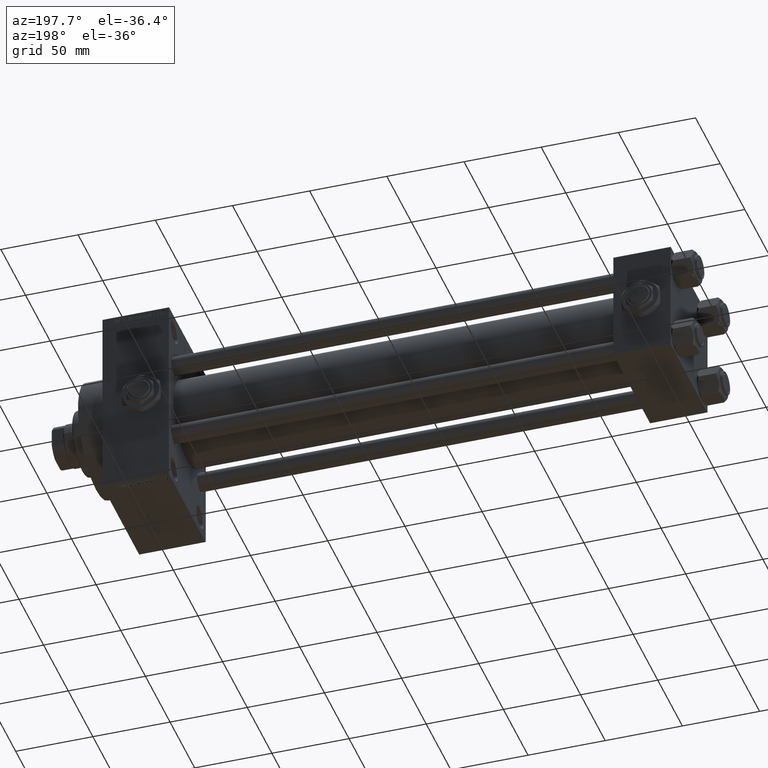
[diagram: clean part render]
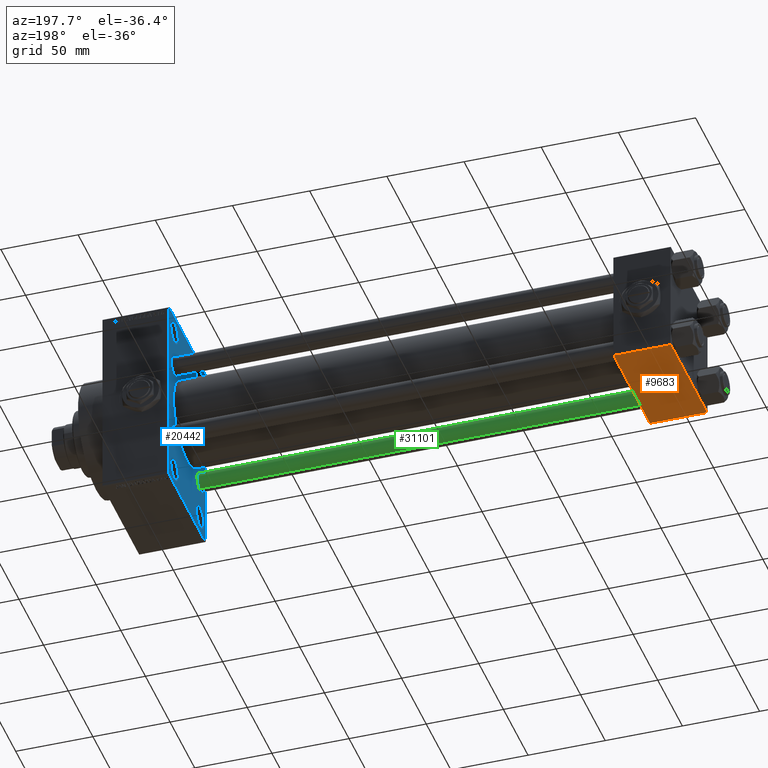
[diagram: same view with three faces highlighted in distinct colors, each labeled with its STEP entity id]
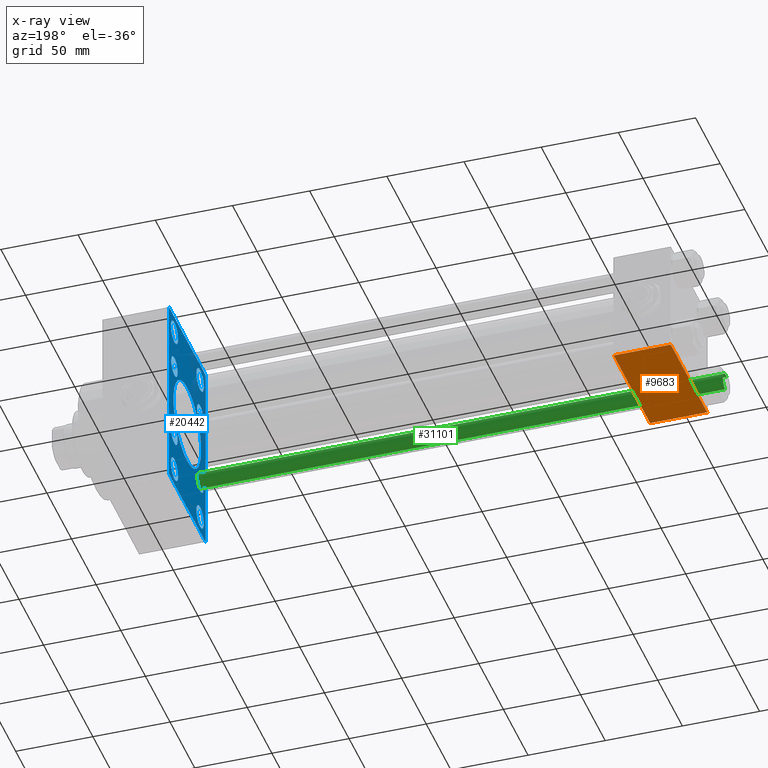
[diagram: x-ray of the same camera — body ghosted, the three highlighted faces saturated]
A machine part, auxiliary view with three faces highlighted in distinct colors.
The next image is the same camera in x-ray (body ghosted, the three faces saturated) — at least one of them is partly hidden behind the body in this view.
Their STEP definitions:

[orange] entity #9683 — the highlighted planar face has unit normal (0, 0, -1).
#314 = DIRECTION ( 'NONE',  ( 0.000000000000000000, -1.000000000000000000, -9.251858538542972814E-17 ) ) ;
#1746 = CARTESIAN_POINT ( 'NONE',  ( 37.00000000000000000, 36.99999999999997868, -37.50000000000000000 ) ) ;
#2787 = DIRECTION ( 'NONE',  ( -1.000000000000000000, 0.000000000000000000, 0.000000000000000000 ) ) ;
#4926 = DIRECTION ( 'NONE',  ( 0.000000000000000000, 9.251858538542972814E-17, -1.000000000000000000 ) ) ;
#5555 = VECTOR ( 'NONE', #2787, 1000.000000000000000 ) ;
#6349 = CARTESIAN_POINT ( 'NONE',  ( 0.000000000000000000, 36.99999999999997868, -37.50000000000000000 ) ) ;
#6779 = EDGE_LOOP ( 'NONE', ( #48385, #13533, #28303, #29151 ) ) ;
#7963 = LINE ( 'NONE', #33613, #12504 ) ;
#8301 = LINE ( 'NONE', #8550, #41348 ) ;
#8550 = CARTESIAN_POINT ( 'NONE',  ( 0.000000000000000000, 37.49999999999999289, -37.50000000000000000 ) ) ;
#8680 = FACE_OUTER_BOUND ( 'NONE', #6779, .T. ) ;
#9076 = AXIS2_PLACEMENT_3D ( 'NONE', #39038, #4926, #20113 ) ;
#9256 = VERTEX_POINT ( 'NONE', #1746 ) ;
#9683 = ADVANCED_FACE ( 'NONE', ( #8680 ), #23849, .T. ) ;
#12504 = VECTOR ( 'NONE', #30125, 1000.000000000000000 ) ;
#13533 = ORIENTED_EDGE ( 'NONE', *, *, #40612, .T. ) ;
#15201 = LINE ( 'NONE', #30378, #5555 ) ;
#16849 = EDGE_CURVE ( 'NONE', #9256, #35502, #7963, .T. ) ;
#20113 = DIRECTION ( 'NONE',  ( 0.000000000000000000, 1.000000000000000000, 9.251858538542972814E-17 ) ) ;
#23849 = PLANE ( 'NONE',  #9076 ) ;
#28303 = ORIENTED_EDGE ( 'NONE', *, *, #16849, .T. ) ;
#29151 = ORIENTED_EDGE ( 'NONE', *, *, #47722, .T. ) ;
#30125 = DIRECTION ( 'NONE',  ( 0.000000000000000000, -1.000000000000000000, -9.251858538542972814E-17 ) ) ;
#30378 = CARTESIAN_POINT ( 'NONE',  ( 0.000000000000000000, -37.00000000000002132, -37.50000000000000711 ) ) ;
#32541 = DIRECTION ( 'NONE',  ( 1.000000000000000000, 0.000000000000000000, 0.000000000000000000 ) ) ;
#33613 = CARTESIAN_POINT ( 'NONE',  ( 37.00000000000000000, 37.49999999999999289, -37.50000000000000000 ) ) ;
#35502 = VERTEX_POINT ( 'NONE', #46487 ) ;
#38651 = VERTEX_POINT ( 'NONE', #44413 ) ;
#38801 = VECTOR ( 'NONE', #32541, 1000.000000000000000 ) ;
#39038 = CARTESIAN_POINT ( 'NONE',  ( 37.00000000000000000, 37.49999999999999289, -37.50000000000000000 ) ) ;
#39778 = CARTESIAN_POINT ( 'NONE',  ( 37.00000000000000000, 36.99999999999997868, -37.50000000000000000 ) ) ;
#40612 = EDGE_CURVE ( 'NONE', #46451, #9256, #48264, .T. ) ;
#41348 = VECTOR ( 'NONE', #314, 1000.000000000000000 ) ;
#44413 = CARTESIAN_POINT ( 'NONE',  ( 0.000000000000000000, -37.00000000000002132, -37.50000000000000711 ) ) ;
#46451 = VERTEX_POINT ( 'NONE', #6349 ) ;
#46487 = CARTESIAN_POINT ( 'NONE',  ( 37.00000000000000000, -37.00000000000002132, -37.50000000000000711 ) ) ;
#47722 = EDGE_CURVE ( 'NONE', #35502, #38651, #15201, .T. ) ;
#48264 = LINE ( 'NONE', #39778, #38801 ) ;
#48385 = ORIENTED_EDGE ( 'NONE', *, *, #48783, .F. ) ;
#48783 = EDGE_CURVE ( 'NONE', #46451, #38651, #8301, .T. ) ;

[blue] entity #20442 — the highlighted planar face has unit normal (-1, 0, 0).
#497 = AXIS2_PLACEMENT_3D ( 'NONE', #49140, #15733, #34159 ) ;
#557 = CARTESIAN_POINT ( 'NONE',  ( 324.9999999999999432, 26.14999999999999858, -32.65000000000001279 ) ) ;
#595 = CARTESIAN_POINT ( 'NONE',  ( 324.9999999999999432, 37.50000000000000000, 63.99999999999998579 ) ) ;
#697 = DIRECTION ( 'NONE',  ( 0.000000000000000000, -1.000000000000000000, -1.850371707708594563E-16 ) ) ;
#1122 = AXIS2_PLACEMENT_3D ( 'NONE', #17692, #6485, #6727 ) ;
#1255 = LINE ( 'NONE', #12968, #47229 ) ;
#1722 = DIRECTION ( 'NONE',  ( 1.000000000000000000, -0.000000000000000000, 0.000000000000000000 ) ) ;
#2405 = DIRECTION ( 'NONE',  ( 1.000000000000000000, -0.000000000000000000, 0.000000000000000000 ) ) ;
#2538 = CARTESIAN_POINT ( 'NONE',  ( 324.9999999999999432, -25.99999999999999645, 44.99999999999987921 ) ) ;
#2585 = DIRECTION ( 'NONE',  ( 0.000000000000000000, 0.7071067811865867636, -0.7071067811865081598 ) ) ;
#2588 = ORIENTED_EDGE ( 'NONE', *, *, #16450, .T. ) ;
#2636 = CARTESIAN_POINT ( 'NONE',  ( 324.9999999999999432, -36.99999999999992895, 63.99999999999997158 ) ) ;
#2840 = DIRECTION ( 'NONE',  ( 0.000000000000000000, 0.000000000000000000, -1.000000000000000000 ) ) ;
#2890 = AXIS2_PLACEMENT_3D ( 'NONE', #16037, #31208, #23993 ) ;
#3166 = FACE_BOUND ( 'NONE', #15596, .T. ) ;
#3347 = VERTEX_POINT ( 'NONE', #8210 ) ;
#3649 = CIRCLE ( 'NONE', #39457, 28.00000000000000000 ) ;
#3757 = EDGE_CURVE ( 'NONE', #36474, #40508, #16135, .T. ) ;
#3885 = CARTESIAN_POINT ( 'NONE',  ( 324.9999999999999432, 26.14999999999999858, 19.64999999999999147 ) ) ;
#3931 = ORIENTED_EDGE ( 'NONE', *, *, #10359, .T. ) ;
#4032 = DIRECTION ( 'NONE',  ( 1.000000000000000000, 0.000000000000000000, 0.000000000000000000 ) ) ;
#4392 = VERTEX_POINT ( 'NONE', #30318 ) ;
#4440 = LINE ( 'NONE', #31320, #42932 ) ;
#4671 = EDGE_LOOP ( 'NONE', ( #42536, #35709, #26431, #33356, #10363, #42077, #21835, #45297 ) ) ;
#5258 = CIRCLE ( 'NONE', #27500, 7.500000000000117240 ) ;
#5395 = ORIENTED_EDGE ( 'NONE', *, *, #3757, .T. ) ;
#5652 = VERTEX_POINT ( 'NONE', #23469 ) ;
#5812 = AXIS2_PLACEMENT_3D ( 'NONE', #11590, #27014, #34475 ) ;
#6045 = EDGE_CURVE ( 'NONE', #4392, #41543, #1255, .T. ) ;
#6184 = ORIENTED_EDGE ( 'NONE', *, *, #28685, .T. ) ;
#6303 = CARTESIAN_POINT ( 'NONE',  ( 324.9999999999999432, -25.99999999999999645, -52.49999999999999289 ) ) ;
#6485 = DIRECTION ( 'NONE',  ( 1.000000000000000000, -0.000000000000000000, 0.000000000000000000 ) ) ;
#6726 = VECTOR ( 'NONE', #7451, 1000.000000000000114 ) ;
#6727 = DIRECTION ( 'NONE',  ( 0.000000000000000000, 0.000000000000000000, 1.000000000000000000 ) ) ;
#7047 = CARTESIAN_POINT ( 'NONE',  ( 324.9999999999999432, -26.14999999999999147, -32.65000000000001990 ) ) ;
#7451 = DIRECTION ( 'NONE',  ( 0.000000000000000000, -0.7071067811865965336, 0.7071067811864985009 ) ) ;
#7611 = ORIENTED_EDGE ( 'NONE', *, *, #35895, .T. ) ;
#8210 = CARTESIAN_POINT ( 'NONE',  ( 324.9999999999999432, -37.49999999999999289, -63.50000000000002842 ) ) ;
#8389 = AXIS2_PLACEMENT_3D ( 'NONE', #28113, #1722, #9951 ) ;
#8494 = AXIS2_PLACEMENT_3D ( 'NONE', #36929, #25480, #23876 ) ;
#8513 = ORIENTED_EDGE ( 'NONE', *, *, #45142, .T. ) ;
#8556 = AXIS2_PLACEMENT_3D ( 'NONE', #46695, #27509, #24519 ) ;
#8596 = CIRCLE ( 'NONE', #26074, 7.500000000000117240 ) ;
#8849 = CARTESIAN_POINT ( 'NONE',  ( 324.9999999999999432, -37.49999999999999289, 63.49999999999991473 ) ) ;
#8993 = DIRECTION ( 'NONE',  ( -0.000000000000000000, -0.7071067811865965336, -0.7071067811864985009 ) ) ;
#9916 = VERTEX_POINT ( 'NONE', #557 ) ;
#9951 = DIRECTION ( 'NONE',  ( 0.000000000000000000, 0.000000000000000000, 1.000000000000000000 ) ) ;
#10155 = EDGE_LOOP ( 'NONE', ( #48819, #48994 ) ) ;
#10359 = EDGE_CURVE ( 'NONE', #15752, #36160, #24985, .T. ) ;
#10363 = ORIENTED_EDGE ( 'NONE', *, *, #39355, .F. ) ;
#10397 = ORIENTED_EDGE ( 'NONE', *, *, #22634, .T. ) ;
#10400 = FACE_BOUND ( 'NONE', #24304, .T. ) ;
#10514 = LINE ( 'NONE', #48629, #38935 ) ;
#10705 = ORIENTED_EDGE ( 'NONE', *, *, #14167, .T. ) ;
#10949 = VECTOR ( 'NONE', #15806, 1000.000000000000000 ) ;
#11000 = EDGE_CURVE ( 'NONE', #14426, #3347, #25646, .T. ) ;
#11125 = FACE_BOUND ( 'NONE', #48765, .T. ) ;
#11240 = DIRECTION ( 'NONE',  ( -0.000000000000000000, 0.7071067811865524577, 0.7071067811865426878 ) ) ;
#11377 = VERTEX_POINT ( 'NONE', #19584 ) ;
#11490 = DIRECTION ( 'NONE',  ( 1.000000000000000000, -0.000000000000000000, 0.000000000000000000 ) ) ;
#11590 = CARTESIAN_POINT ( 'NONE',  ( 324.9999999999999432, -25.99999999999999645, -52.49999999999999289 ) ) ;
#11903 = CARTESIAN_POINT ( 'NONE',  ( 324.9999999999999432, -25.99999999999999645, -44.99999999999987210 ) ) ;
#12382 = EDGE_CURVE ( 'NONE', #39192, #37328, #33016, .T. ) ;
#12621 = ORIENTED_EDGE ( 'NONE', *, *, #48070, .T. ) ;
#12968 = CARTESIAN_POINT ( 'NONE',  ( 324.9999999999999432, 50.49999999999739941, -50.50000000000441247 ) ) ;
#13382 = DIRECTION ( 'NONE',  ( 1.000000000000000000, -0.000000000000000000, 0.000000000000000000 ) ) ;
#13581 = CARTESIAN_POINT ( 'NONE',  ( 324.9999999999999432, 26.14999999999999858, -26.15000000000000213 ) ) ;
#13639 = VERTEX_POINT ( 'NONE', #21136 ) ;
#13845 = CIRCLE ( 'NONE', #40069, 7.500000000000117240 ) ;
#13878 = DIRECTION ( 'NONE',  ( 0.000000000000000000, -5.421010862427522170E-17, -1.000000000000000000 ) ) ;
#14125 = LINE ( 'NONE', #25326, #26140 ) ;
#14167 = EDGE_CURVE ( 'NONE', #48286, #20730, #5258, .T. ) ;
#14245 = CARTESIAN_POINT ( 'NONE',  ( 324.9999999999999432, 8.269258236473784371E-16, -28.00000000000000000 ) ) ;
#14426 = VERTEX_POINT ( 'NONE', #32451 ) ;
#14674 = CARTESIAN_POINT ( 'NONE',  ( 324.9999999999999432, 36.99999999999993605, -64.00000000000000000 ) ) ;
#14856 = DIRECTION ( 'NONE',  ( -0.000000000000000000, 0.000000000000000000, 1.000000000000000000 ) ) ;
#15229 = CARTESIAN_POINT ( 'NONE',  ( 324.9999999999999432, 26.00000000000000000, -44.99999999999987210 ) ) ;
#15596 = EDGE_LOOP ( 'NONE', ( #12621, #36957 ) ) ;
#15670 = VERTEX_POINT ( 'NONE', #15229 ) ;
#15686 = AXIS2_PLACEMENT_3D ( 'NONE', #35299, #31563, #46530 ) ;
#15733 = DIRECTION ( 'NONE',  ( 1.000000000000000000, -0.000000000000000000, 0.000000000000000000 ) ) ;
#15752 = VERTEX_POINT ( 'NONE', #48356 ) ;
#15806 = DIRECTION ( 'NONE',  ( 0.000000000000000000, -1.000000000000000000, -1.850371707708594563E-16 ) ) ;
#16037 = CARTESIAN_POINT ( 'NONE',  ( 324.9999999999999432, 26.14999999999999858, 26.15000000000000213 ) ) ;
#16135 = CIRCLE ( 'NONE', #5812, 7.500000000000117240 ) ;
#16450 = EDGE_CURVE ( 'NONE', #36160, #15752, #25967, .T. ) ;
#16540 = CARTESIAN_POINT ( 'NONE',  ( 324.9999999999999432, -2.602085213965210642E-15, 0.000000000000000000 ) ) ;
#16680 = AXIS2_PLACEMENT_3D ( 'NONE', #48909, #4032, #37418 ) ;
#17095 = ORIENTED_EDGE ( 'NONE', *, *, #34762, .T. ) ;
#17531 = EDGE_CURVE ( 'NONE', #5652, #25021, #40373, .T. ) ;
#17692 = CARTESIAN_POINT ( 'NONE',  ( 324.9999999999999432, -26.14999999999999147, -26.15000000000000924 ) ) ;
#18013 = CARTESIAN_POINT ( 'NONE',  ( 324.9999999999999432, 26.00000000000000000, 52.49999999999999289 ) ) ;
#18122 = FACE_BOUND ( 'NONE', #10155, .T. ) ;
#18357 = FACE_OUTER_BOUND ( 'NONE', #4671, .T. ) ;
#18968 = AXIS2_PLACEMENT_3D ( 'NONE', #27823, #13382, #31289 ) ;
#19584 = CARTESIAN_POINT ( 'NONE',  ( 324.9999999999999432, 26.14999999999999858, -19.64999999999999503 ) ) ;
#20442 = ADVANCED_FACE ( 'NONE', ( #44515, #11125, #44748, #10400, #37268, #48750, #3166, #45472, #18122, #18357 ), #33764, .T. ) ;
#20730 = VERTEX_POINT ( 'NONE', #44925 ) ;
#20984 = DIRECTION ( 'NONE',  ( 1.000000000000000000, -0.000000000000000000, 0.000000000000000000 ) ) ;
#21045 = DIRECTION ( 'NONE',  ( 1.000000000000000000, -0.000000000000000000, 0.000000000000000000 ) ) ;
#21096 = EDGE_CURVE ( 'NONE', #9916, #11377, #22854, .T. ) ;
#21136 = CARTESIAN_POINT ( 'NONE',  ( 324.9999999999999432, -2.602085213965210642E-15, 28.00000000000000000 ) ) ;
#21140 = CARTESIAN_POINT ( 'NONE',  ( 324.9999999999999432, -25.99999999999999645, 52.50000000000000000 ) ) ;
#21169 = CARTESIAN_POINT ( 'NONE',  ( 324.9999999999999432, -25.99999999999999645, 60.00000000000011369 ) ) ;
#21260 = VECTOR ( 'NONE', #2585, 1000.000000000000000 ) ;
#21322 = CARTESIAN_POINT ( 'NONE',  ( 324.9999999999999432, 37.50000000000000000, 63.49999999999998579 ) ) ;
#21366 = CIRCLE ( 'NONE', #28556, 7.500000000000117240 ) ;
#21388 = DIRECTION ( 'NONE',  ( 1.000000000000000000, -0.000000000000000000, 0.000000000000000000 ) ) ;
#21835 = ORIENTED_EDGE ( 'NONE', *, *, #47042, .T. ) ;
#22237 = LINE ( 'NONE', #25496, #34837 ) ;
#22634 = EDGE_CURVE ( 'NONE', #20730, #48286, #8596, .T. ) ;
#22834 = CARTESIAN_POINT ( 'NONE',  ( 324.9999999999999432, 36.99999999999994316, 63.99999999999998579 ) ) ;
#22854 = CIRCLE ( 'NONE', #15686, 6.500000000000008882 ) ;
#22996 = EDGE_CURVE ( 'NONE', #27454, #3347, #22237, .T. ) ;
#23469 = CARTESIAN_POINT ( 'NONE',  ( 324.9999999999999432, 26.14999999999999858, 32.65000000000001990 ) ) ;
#23670 = CARTESIAN_POINT ( 'NONE',  ( 324.9999999999999432, -26.14999999999999147, 26.15000000000000924 ) ) ;
#23799 = AXIS2_PLACEMENT_3D ( 'NONE', #13581, #21045, #32972 ) ;
#23876 = DIRECTION ( 'NONE',  ( 0.000000000000000000, 0.000000000000000000, 1.000000000000000000 ) ) ;
#23993 = DIRECTION ( 'NONE',  ( 0.000000000000000000, 0.000000000000000000, 1.000000000000000000 ) ) ;
#24304 = EDGE_LOOP ( 'NONE', ( #10397, #10705 ) ) ;
#24519 = DIRECTION ( 'NONE',  ( 0.000000000000000000, 0.000000000000000000, 1.000000000000000000 ) ) ;
#24985 = CIRCLE ( 'NONE', #1122, 6.500000000000008882 ) ;
#25021 = VERTEX_POINT ( 'NONE', #3885 ) ;
#25326 = CARTESIAN_POINT ( 'NONE',  ( 324.9999999999999432, 37.50000000000000000, 63.99999999999998579 ) ) ;
#25480 = DIRECTION ( 'NONE',  ( 1.000000000000000000, -0.000000000000000000, 0.000000000000000000 ) ) ;
#25496 = CARTESIAN_POINT ( 'NONE',  ( 324.9999999999999432, -37.49999999999999289, 63.99999999999997158 ) ) ;
#25564 = ORIENTED_EDGE ( 'NONE', *, *, #45180, .T. ) ;
#25646 = LINE ( 'NONE', #41318, #6726 ) ;
#25950 = DIRECTION ( 'NONE',  ( 1.000000000000000000, -0.000000000000000000, 0.000000000000000000 ) ) ;
#25967 = CIRCLE ( 'NONE', #497, 6.500000000000008882 ) ;
#25999 = AXIS2_PLACEMENT_3D ( 'NONE', #26289, #44990, #14856 ) ;
#26074 = AXIS2_PLACEMENT_3D ( 'NONE', #18013, #25950, #44882 ) ;
#26140 = VECTOR ( 'NONE', #13878, 1000.000000000000000 ) ;
#26270 = CARTESIAN_POINT ( 'NONE',  ( 324.9999999999999432, -26.14999999999999147, 19.65000000000000213 ) ) ;
#26289 = CARTESIAN_POINT ( 'NONE',  ( 324.9999999999999432, 0.000000000000000000, 0.000000000000000000 ) ) ;
#26431 = ORIENTED_EDGE ( 'NONE', *, *, #22996, .F. ) ;
#26660 = DIRECTION ( 'NONE',  ( 0.000000000000000000, 0.000000000000000000, 1.000000000000000000 ) ) ;
#26669 = AXIS2_PLACEMENT_3D ( 'NONE', #21140, #21388, #32086 ) ;
#26982 = VERTEX_POINT ( 'NONE', #22834 ) ;
#27014 = DIRECTION ( 'NONE',  ( 1.000000000000000000, -0.000000000000000000, 0.000000000000000000 ) ) ;
#27454 = VERTEX_POINT ( 'NONE', #8849 ) ;
#27500 = AXIS2_PLACEMENT_3D ( 'NONE', #44954, #2405, #40974 ) ;
#27509 = DIRECTION ( 'NONE',  ( 1.000000000000000000, -0.000000000000000000, 0.000000000000000000 ) ) ;
#27823 = CARTESIAN_POINT ( 'NONE',  ( 324.9999999999999432, 26.00000000000000000, -52.49999999999999289 ) ) ;
#27900 = ORIENTED_EDGE ( 'NONE', *, *, #12382, .T. ) ;
#28113 = CARTESIAN_POINT ( 'NONE',  ( 324.9999999999999432, 26.00000000000000000, -52.49999999999999289 ) ) ;
#28310 = CIRCLE ( 'NONE', #8389, 7.500000000000117240 ) ;
#28502 = LINE ( 'NONE', #36453, #21260 ) ;
#28556 = AXIS2_PLACEMENT_3D ( 'NONE', #46506, #43512, #32040 ) ;
#28685 = EDGE_CURVE ( 'NONE', #40508, #36474, #13845, .T. ) ;
#29456 = DIRECTION ( 'NONE',  ( 0.000000000000000000, 0.000000000000000000, -1.000000000000000000 ) ) ;
#29527 = CARTESIAN_POINT ( 'NONE',  ( 324.9999999999999432, -26.14999999999999147, 32.65000000000001990 ) ) ;
#30318 = CARTESIAN_POINT ( 'NONE',  ( 324.9999999999999432, 37.49999999999999289, -63.50000000000001421 ) ) ;
#31052 = ORIENTED_EDGE ( 'NONE', *, *, #38656, .T. ) ;
#31208 = DIRECTION ( 'NONE',  ( 1.000000000000000000, -0.000000000000000000, 0.000000000000000000 ) ) ;
#31289 = DIRECTION ( 'NONE',  ( 0.000000000000000000, 0.000000000000000000, 1.000000000000000000 ) ) ;
#31320 = CARTESIAN_POINT ( 'NONE',  ( 324.9999999999999432, 37.49999999999999289, -64.00000000000000000 ) ) ;
#31563 = DIRECTION ( 'NONE',  ( 1.000000000000000000, -0.000000000000000000, 0.000000000000000000 ) ) ;
#31712 = DIRECTION ( 'NONE',  ( 1.000000000000000000, 0.000000000000000000, 0.000000000000000000 ) ) ;
#32040 = DIRECTION ( 'NONE',  ( 0.000000000000000000, 0.000000000000000000, 1.000000000000000000 ) ) ;
#32086 = DIRECTION ( 'NONE',  ( 0.000000000000000000, 0.000000000000000000, 1.000000000000000000 ) ) ;
#32301 = CIRCLE ( 'NONE', #2890, 6.500000000000008882 ) ;
#32451 = CARTESIAN_POINT ( 'NONE',  ( 324.9999999999999432, -36.99999999999993605, -64.00000000000001421 ) ) ;
#32620 = EDGE_LOOP ( 'NONE', ( #25564, #17095 ) ) ;
#32707 = EDGE_LOOP ( 'NONE', ( #8513, #43516 ) ) ;
#32972 = DIRECTION ( 'NONE',  ( 0.000000000000000000, 0.000000000000000000, 1.000000000000000000 ) ) ;
#33016 = CIRCLE ( 'NONE', #36964, 6.500000000000008882 ) ;
#33356 = ORIENTED_EDGE ( 'NONE', *, *, #48499, .T. ) ;
#33764 = PLANE ( 'NONE',  #25999 ) ;
#33886 = VERTEX_POINT ( 'NONE', #2636 ) ;
#34159 = DIRECTION ( 'NONE',  ( 0.000000000000000000, 0.000000000000000000, 1.000000000000000000 ) ) ;
#34475 = DIRECTION ( 'NONE',  ( 0.000000000000000000, 0.000000000000000000, 1.000000000000000000 ) ) ;
#34742 = CIRCLE ( 'NONE', #8494, 6.500000000000008882 ) ;
#34762 = EDGE_CURVE ( 'NONE', #48306, #15670, #28310, .T. ) ;
#34781 = EDGE_CURVE ( 'NONE', #45703, #41477, #41781, .T. ) ;
#34837 = VECTOR ( 'NONE', #2840, 1000.000000000000000 ) ;
#35299 = CARTESIAN_POINT ( 'NONE',  ( 324.9999999999999432, 26.14999999999999858, -26.15000000000000213 ) ) ;
#35622 = VERTEX_POINT ( 'NONE', #21322 ) ;
#35638 = CIRCLE ( 'NONE', #16680, 28.00000000000000000 ) ;
#35709 = ORIENTED_EDGE ( 'NONE', *, *, #11000, .T. ) ;
#35895 = EDGE_CURVE ( 'NONE', #25021, #5652, #32301, .T. ) ;
#36094 = EDGE_CURVE ( 'NONE', #13639, #40366, #3649, .T. ) ;
#36160 = VERTEX_POINT ( 'NONE', #7047 ) ;
#36416 = CARTESIAN_POINT ( 'NONE',  ( 324.9999999999999432, 26.00000000000000000, -60.00000000000010658 ) ) ;
#36453 = CARTESIAN_POINT ( 'NONE',  ( 324.9999999999999432, 50.49999999999791100, 50.50000000000351719 ) ) ;
#36474 = VERTEX_POINT ( 'NONE', #41035 ) ;
#36929 = CARTESIAN_POINT ( 'NONE',  ( 324.9999999999999432, -26.14999999999999147, 26.15000000000000924 ) ) ;
#36957 = ORIENTED_EDGE ( 'NONE', *, *, #21096, .T. ) ;
#36964 = AXIS2_PLACEMENT_3D ( 'NONE', #23670, #11490, #26660 ) ;
#37268 = FACE_BOUND ( 'NONE', #40022, .T. ) ;
#37328 = VERTEX_POINT ( 'NONE', #26270 ) ;
#37418 = DIRECTION ( 'NONE',  ( 0.000000000000000000, 0.000000000000000000, -1.000000000000000000 ) ) ;
#38656 = EDGE_CURVE ( 'NONE', #37328, #39192, #34742, .T. ) ;
#38935 = VECTOR ( 'NONE', #11240, 1000.000000000000000 ) ;
#39192 = VERTEX_POINT ( 'NONE', #29527 ) ;
#39355 = EDGE_CURVE ( 'NONE', #26982, #33886, #43188, .T. ) ;
#39409 = EDGE_CURVE ( 'NONE', #26982, #35622, #28502, .T. ) ;
#39439 = ORIENTED_EDGE ( 'NONE', *, *, #17531, .T. ) ;
#39457 = AXIS2_PLACEMENT_3D ( 'NONE', #16540, #31712, #29456 ) ;
#39661 = DIRECTION ( 'NONE',  ( 0.000000000000000000, 0.000000000000000000, 1.000000000000000000 ) ) ;
#39736 = CIRCLE ( 'NONE', #23799, 6.500000000000008882 ) ;
#40022 = EDGE_LOOP ( 'NONE', ( #27900, #31052 ) ) ;
#40069 = AXIS2_PLACEMENT_3D ( 'NONE', #6303, #20984, #39661 ) ;
#40366 = VERTEX_POINT ( 'NONE', #14245 ) ;
#40373 = CIRCLE ( 'NONE', #8556, 6.500000000000008882 ) ;
#40396 = CARTESIAN_POINT ( 'NONE',  ( 324.9999999999999432, 26.00000000000000000, 44.99999999999987210 ) ) ;
#40508 = VERTEX_POINT ( 'NONE', #11903 ) ;
#40974 = DIRECTION ( 'NONE',  ( 0.000000000000000000, 0.000000000000000000, 1.000000000000000000 ) ) ;
#41035 = CARTESIAN_POINT ( 'NONE',  ( 324.9999999999999432, -25.99999999999999645, -60.00000000000010658 ) ) ;
#41318 = CARTESIAN_POINT ( 'NONE',  ( 324.9999999999999432, -50.49999999999740652, -50.50000000000441958 ) ) ;
#41477 = VERTEX_POINT ( 'NONE', #21169 ) ;
#41543 = VERTEX_POINT ( 'NONE', #14674 ) ;
#41781 = CIRCLE ( 'NONE', #26669, 7.500000000000117240 ) ;
#42077 = ORIENTED_EDGE ( 'NONE', *, *, #39409, .T. ) ;
#42333 = EDGE_LOOP ( 'NONE', ( #3931, #2588 ) ) ;
#42536 = ORIENTED_EDGE ( 'NONE', *, *, #49222, .T. ) ;
#42932 = VECTOR ( 'NONE', #697, 1000.000000000000000 ) ;
#43188 = LINE ( 'NONE', #595, #10949 ) ;
#43512 = DIRECTION ( 'NONE',  ( 1.000000000000000000, -0.000000000000000000, 0.000000000000000000 ) ) ;
#43516 = ORIENTED_EDGE ( 'NONE', *, *, #34781, .T. ) ;
#44515 = FACE_BOUND ( 'NONE', #32707, .T. ) ;
#44670 = EDGE_CURVE ( 'NONE', #40366, #13639, #35638, .T. ) ;
#44748 = FACE_BOUND ( 'NONE', #32620, .T. ) ;
#44882 = DIRECTION ( 'NONE',  ( 0.000000000000000000, 0.000000000000000000, 1.000000000000000000 ) ) ;
#44925 = CARTESIAN_POINT ( 'NONE',  ( 324.9999999999999432, 26.00000000000000000, 60.00000000000010658 ) ) ;
#44954 = CARTESIAN_POINT ( 'NONE',  ( 324.9999999999999432, 26.00000000000000000, 52.49999999999999289 ) ) ;
#44990 = DIRECTION ( 'NONE',  ( -1.000000000000000000, 0.000000000000000000, -0.000000000000000000 ) ) ;
#45142 = EDGE_CURVE ( 'NONE', #41477, #45703, #21366, .T. ) ;
#45180 = EDGE_CURVE ( 'NONE', #15670, #48306, #48439, .T. ) ;
#45297 = ORIENTED_EDGE ( 'NONE', *, *, #6045, .T. ) ;
#45472 = FACE_BOUND ( 'NONE', #42333, .T. ) ;
#45703 = VERTEX_POINT ( 'NONE', #2538 ) ;
#46506 = CARTESIAN_POINT ( 'NONE',  ( 324.9999999999999432, -25.99999999999999645, 52.50000000000000000 ) ) ;
#46530 = DIRECTION ( 'NONE',  ( 0.000000000000000000, 0.000000000000000000, 1.000000000000000000 ) ) ;
#46695 = CARTESIAN_POINT ( 'NONE',  ( 324.9999999999999432, 26.14999999999999858, 26.15000000000000213 ) ) ;
#47042 = EDGE_CURVE ( 'NONE', #35622, #4392, #14125, .T. ) ;
#47229 = VECTOR ( 'NONE', #8993, 1000.000000000000114 ) ;
#48070 = EDGE_CURVE ( 'NONE', #11377, #9916, #39736, .T. ) ;
#48286 = VERTEX_POINT ( 'NONE', #40396 ) ;
#48306 = VERTEX_POINT ( 'NONE', #36416 ) ;
#48356 = CARTESIAN_POINT ( 'NONE',  ( 324.9999999999999432, -26.14999999999999147, -19.65000000000000213 ) ) ;
#48439 = CIRCLE ( 'NONE', #18968, 7.500000000000117240 ) ;
#48499 = EDGE_CURVE ( 'NONE', #27454, #33886, #10514, .T. ) ;
#48629 = CARTESIAN_POINT ( 'NONE',  ( 324.9999999999999432, -50.49999999999969447, 50.50000000000039080 ) ) ;
#48750 = FACE_BOUND ( 'NONE', #49118, .T. ) ;
#48765 = EDGE_LOOP ( 'NONE', ( #6184, #5395 ) ) ;
#48819 = ORIENTED_EDGE ( 'NONE', *, *, #36094, .T. ) ;
#48909 = CARTESIAN_POINT ( 'NONE',  ( 324.9999999999999432, -2.602085213965210642E-15, 0.000000000000000000 ) ) ;
#48994 = ORIENTED_EDGE ( 'NONE', *, *, #44670, .T. ) ;
#49118 = EDGE_LOOP ( 'NONE', ( #39439, #7611 ) ) ;
#49140 = CARTESIAN_POINT ( 'NONE',  ( 324.9999999999999432, -26.14999999999999147, -26.15000000000000924 ) ) ;
#49222 = EDGE_CURVE ( 'NONE', #41543, #14426, #4440, .T. ) ;

[green] entity #31101 — the highlighted cylindrical surface (edge-blend (fillet) strip) has radius 6 mm, axis along (-1, 0, 0).
#4427 = LINE ( 'NONE', #18888, #13438 ) ;
#4534 = DIRECTION ( 'NONE',  ( -0.000000000000000000, -0.000000000000000000, 1.000000000000000000 ) ) ;
#4794 = VERTEX_POINT ( 'NONE', #31750 ) ;
#4974 = DIRECTION ( 'NONE',  ( 1.000000000000000000, 0.000000000000000000, 0.000000000000000000 ) ) ;
#6826 = DIRECTION ( 'NONE',  ( -0.000000000000000000, -0.000000000000000000, -1.000000000000000000 ) ) ;
#7069 = CYLINDRICAL_SURFACE ( 'NONE', #33794, 6.000000000000000888 ) ;
#8373 = VERTEX_POINT ( 'NONE', #26429 ) ;
#8453 = ORIENTED_EDGE ( 'NONE', *, *, #23254, .T. ) ;
#8727 = DIRECTION ( 'NONE',  ( 0.000000000000000000, 0.000000000000000000, -1.000000000000000000 ) ) ;
#9909 = AXIS2_PLACEMENT_3D ( 'NONE', #34849, #8727, #4974 ) ;
#11373 = CARTESIAN_POINT ( 'NONE',  ( 6.000000000000000888, 7.347880794884120722E-16, 0.5000000000000559552 ) ) ;
#12018 = CARTESIAN_POINT ( 'NONE',  ( 6.000000000000000888, 7.347880794884120722E-16, 354.0000000000000000 ) ) ;
#13438 = VECTOR ( 'NONE', #22606, 1000.000000000000000 ) ;
#14889 = ORIENTED_EDGE ( 'NONE', *, *, #31719, .T. ) ;
#15444 = CIRCLE ( 'NONE', #9909, 6.000000000000000888 ) ;
#17798 = FACE_OUTER_BOUND ( 'NONE', #34152, .T. ) ;
#18168 = CIRCLE ( 'NONE', #20580, 6.000000000000000888 ) ;
#18888 = CARTESIAN_POINT ( 'NONE',  ( -6.000000000000000888, 0.000000000000000000, 354.0000000000000000 ) ) ;
#20580 = AXIS2_PLACEMENT_3D ( 'NONE', #23196, #4534, #46375 ) ;
#20982 = VECTOR ( 'NONE', #27445, 1000.000000000000000 ) ;
#22606 = DIRECTION ( 'NONE',  ( -0.000000000000000000, -0.000000000000000000, -1.000000000000000000 ) ) ;
#23196 = CARTESIAN_POINT ( 'NONE',  ( 0.000000000000000000, 0.000000000000000000, 0.5000000000000559552 ) ) ;
#23254 = EDGE_CURVE ( 'NONE', #4794, #43214, #18168, .T. ) ;
#24659 = EDGE_CURVE ( 'NONE', #8373, #4794, #4427, .T. ) ;
#26429 = CARTESIAN_POINT ( 'NONE',  ( -6.000000000000000888, 0.000000000000000000, 353.5000000000000000 ) ) ;
#27193 = LINE ( 'NONE', #12018, #20982 ) ;
#27445 = DIRECTION ( 'NONE',  ( -0.000000000000000000, -0.000000000000000000, -1.000000000000000000 ) ) ;
#27751 = EDGE_CURVE ( 'NONE', #40157, #43214, #27193, .T. ) ;
#31101 = ADVANCED_FACE ( 'NONE', ( #17798 ), #7069, .T. ) ;
#31719 = EDGE_CURVE ( 'NONE', #40157, #8373, #15444, .T. ) ;
#31750 = CARTESIAN_POINT ( 'NONE',  ( -6.000000000000000888, 0.000000000000000000, 0.5000000000000559552 ) ) ;
#32921 = ORIENTED_EDGE ( 'NONE', *, *, #24659, .T. ) ;
#32959 = DIRECTION ( 'NONE',  ( -1.000000000000000000, 0.000000000000000000, 0.000000000000000000 ) ) ;
#33794 = AXIS2_PLACEMENT_3D ( 'NONE', #45150, #6826, #32959 ) ;
#34152 = EDGE_LOOP ( 'NONE', ( #43294, #14889, #32921, #8453 ) ) ;
#34849 = CARTESIAN_POINT ( 'NONE',  ( 0.000000000000000000, 0.000000000000000000, 353.5000000000000000 ) ) ;
#39205 = CARTESIAN_POINT ( 'NONE',  ( 6.000000000000000888, 7.347880794884120722E-16, 353.5000000000000000 ) ) ;
#40157 = VERTEX_POINT ( 'NONE', #39205 ) ;
#43214 = VERTEX_POINT ( 'NONE', #11373 ) ;
#43294 = ORIENTED_EDGE ( 'NONE', *, *, #27751, .F. ) ;
#45150 = CARTESIAN_POINT ( 'NONE',  ( 0.000000000000000000, 0.000000000000000000, 354.0000000000000000 ) ) ;
#46375 = DIRECTION ( 'NONE',  ( 1.000000000000000000, 0.000000000000000000, 0.000000000000000000 ) ) ;